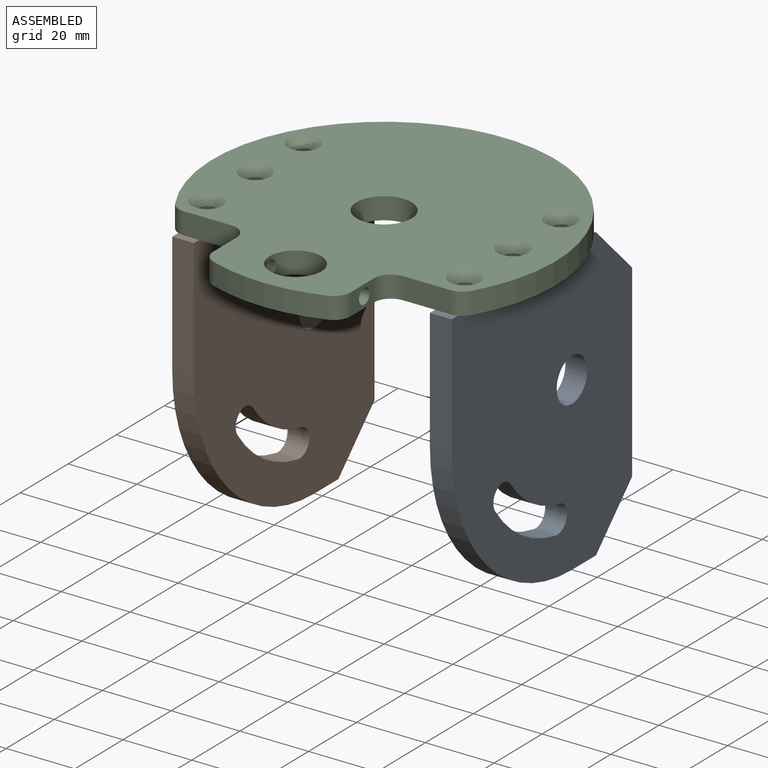
[diagram: assembled view]
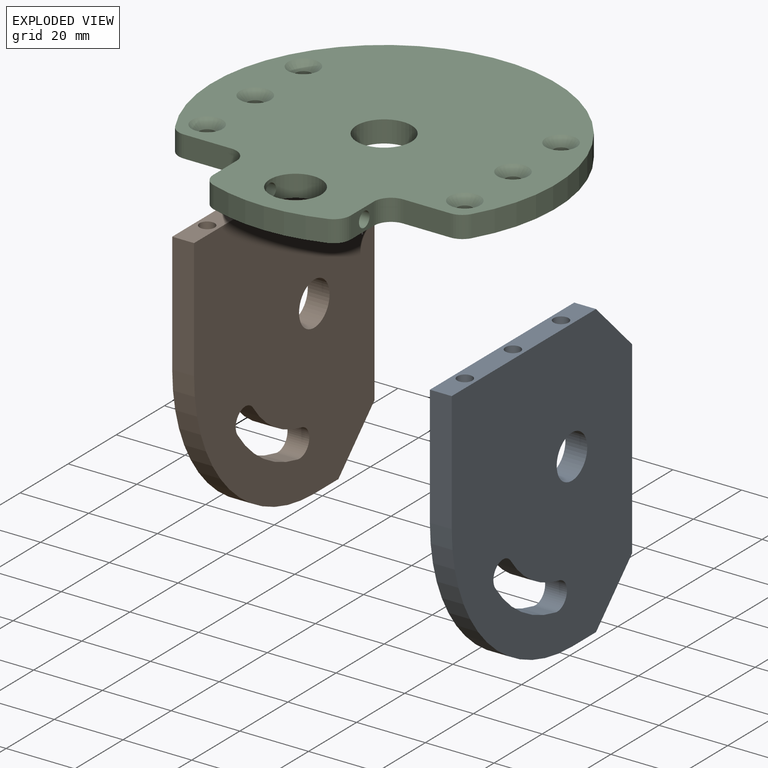
[diagram: exploded view]
GUIDED TOUR — MATED ASSEMBLY (Onshape document 7c3d1aeb51c2d743b5142ca0, AutoMate assembly 7c3d1aeb51c2d743b5142ca0_7ad1a2234b4075b2d494fefe_948addc8903bf7b92234667a_default)

This assembly has 3 components, labeled P0..P2 below (a component is one placed occurrence of a part; the same part can appear more than once), held together by 2 mates. A mate is a constraint between two components; its type names the relative motion it leaves free:
  FASTENED — locks the two components together rigidly (no relative motion).
Axis/direction vectors are unit vectors and 'through' points are millimeter coordinates, both in the assembly's world frame.

MATES
  1. FASTENED "Fastened 1": P1 <-> P2, direction (0.000, 0.000, 1.000) through (-37.50, -20.00, 0.00) mm
  2. FASTENED "Fastened 2": P0 <-> P2, direction (0.000, 0.000, 1.000) through (37.50, -20.00, 0.00) mm

ASSEMBLY ORDER
  1. P1 — the base component [order verified]
  2. P0 [order verified]
  3. P2 [order verified]
Order-tag legend:
  [order verified] — this step's position reverses a verified removal order: the component was checked to insert without passing through the ones already placed.

Of the 3 components, 2 carry the full construction recipe — the FeatureScript program that regenerates the part's solid from scratch; the rest are supplied as boundary geometry only.
Each toured component is shown spotlighted twice — in the assembled view, then in the exploded view, where a leader line traces a displaced component back to its assembled socket (saturated green if recipe-attached, orange if geometry-only; every other component desaturated gray) — followed by its recipe or geometry summary and the mates that hold it.
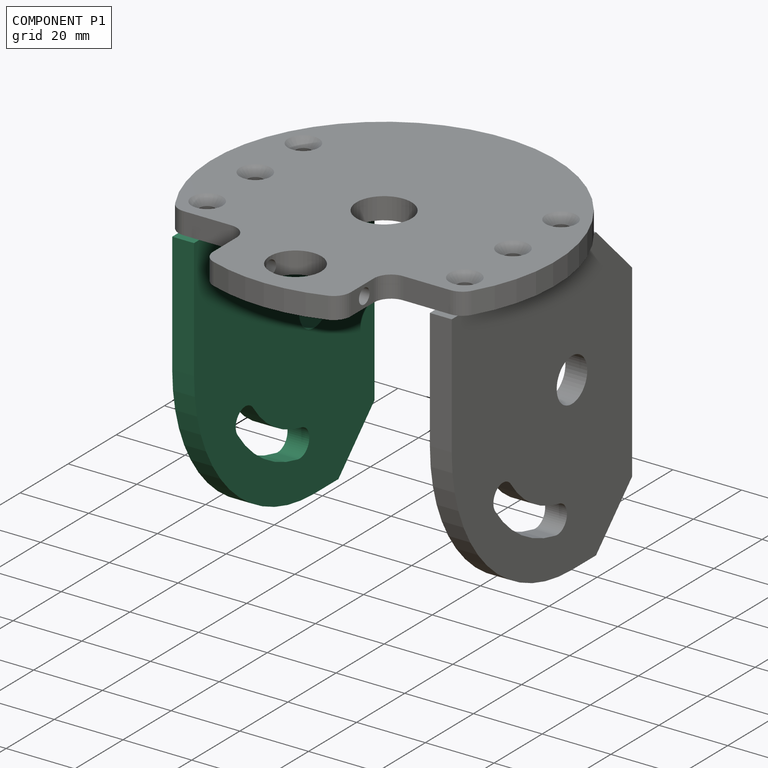
[diagram: component P1 — assembled]
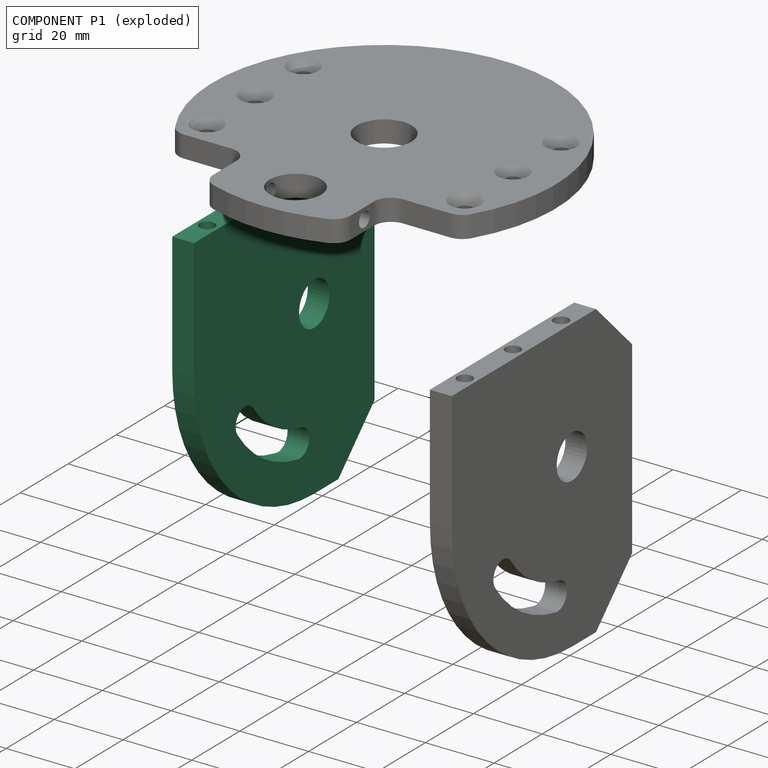
[diagram: component P1 — exploded]
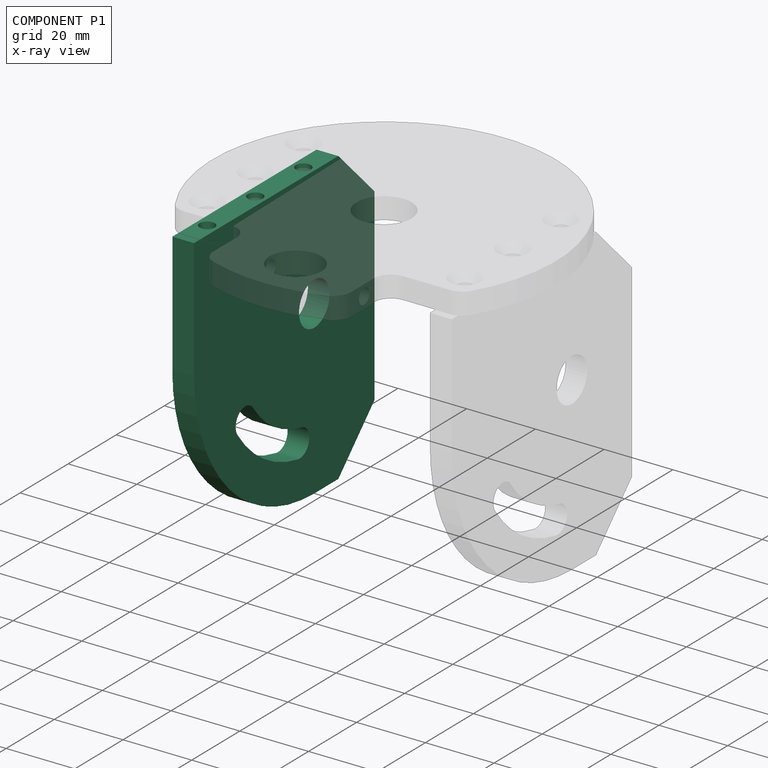
[diagram: component P1 — x-ray view]
COMPONENT P1 — same part as P0 (CADFS 00680055); its construction recipe is shown at P0.
Held by: FASTENED mate "Fastened 1" to P2.
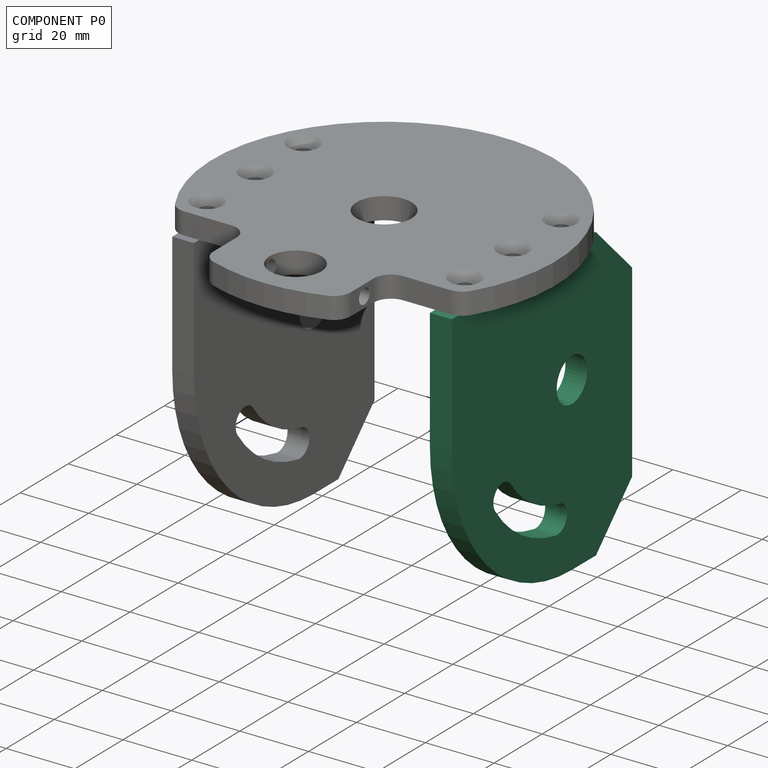
[diagram: component P0 — assembled]
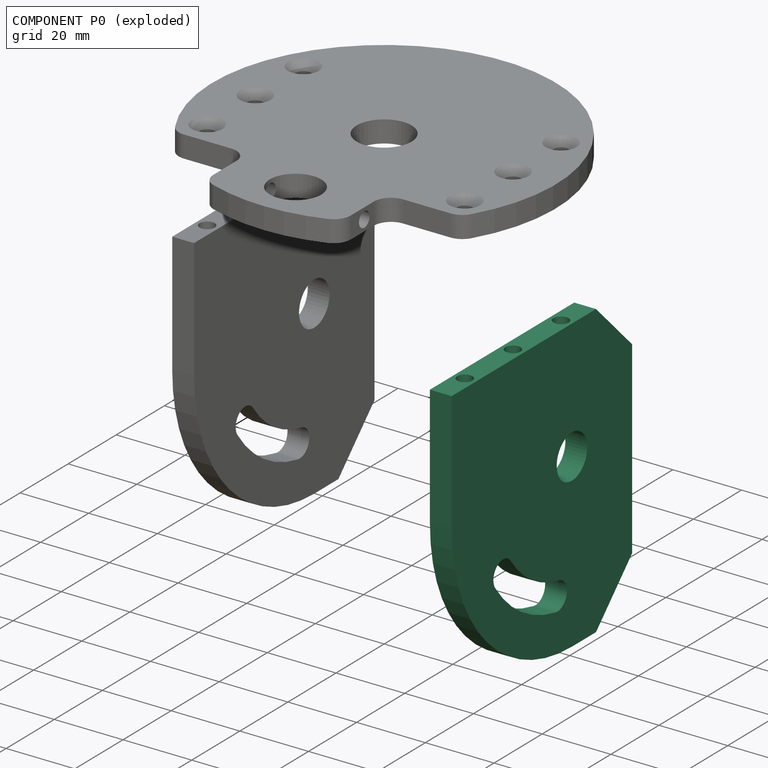
[diagram: component P0 — exploded]
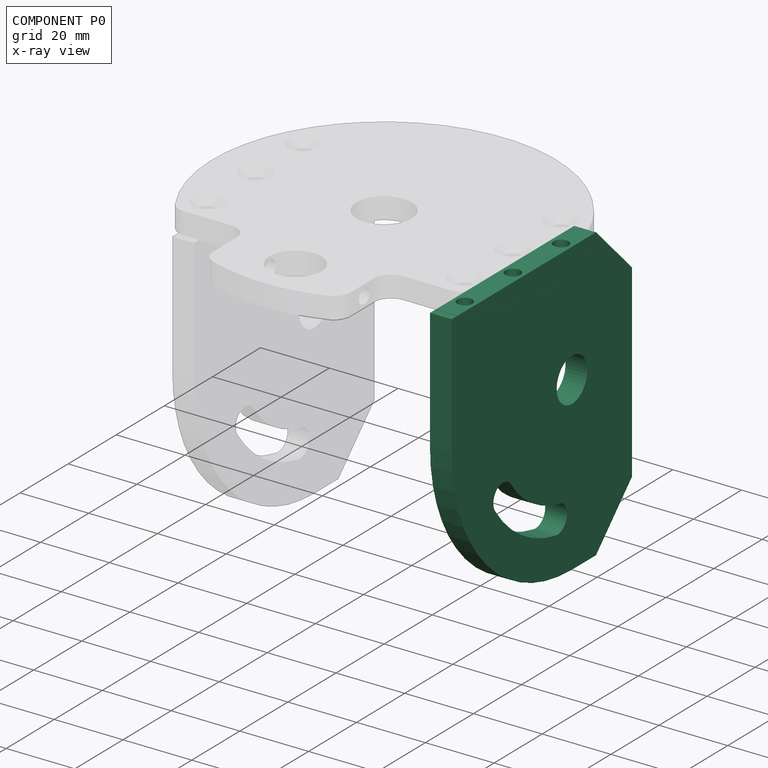
[diagram: component P0 — x-ray view]
COMPONENT P0 — recipe-attached (CADFS 00680055, mesh-verified: the recipe's output STEP matches this component's geometry to below the mesh-comparison resolution (tessellation chordal tolerance ~0.17 mm)).
Held by: FASTENED mate "Fastened 2" to P2.
Construction recipe (FeatureScript — the CAD program that rebuilds this solid; sketch coordinates are in the units given by the * unit suffixes, e.g. mm):

FeatureScript 1511;
import(path : "onshape/std/geometry.fs", version : "1511.0");
import(path : "onshape/std/common.fs", version : "1511.0");
const mm = millimeter;
const VERTEX = EntityType.VERTEX;
const EDGE = EntityType.EDGE;
const FACE = EntityType.FACE;
const BODY = EntityType.BODY;
function v(x, y){return vector(x, y);}
function OD(order){return orderDisambiguation(order);}
function OSD(set){return originalSetDisambiguation(set);}
function TD(topology){return topologyDisambiguation(topology);}
function TDD(query){return trueDependencyDisambiguation(query);}
function sQuery(a, b, c) {return sketchEntityQuery(a, b, c);}

annotation { "Feature Type Name" : "Feature", "Feature Type Description" : "" }
export const myFeature = defineFeature(function(context is Context, id is Id, definition is map)
    precondition{}
    {
        {
            var Q0;
            Q0=qCreatedBy(makeId("Right.planeOp"),FACE);
            var sketch = newSketch(context, id + "F0", { "sketchPlane" : qUnion([Q0])});
            skLineSegment(sketch, "E0", {"start": v(0, 0) * mm, "end": v(-75, 0) * mm});
            skLineSegment(sketch, "E1", {"start": v(-75, 0) * mm, "end": v(-75, 35) * mm});
            skArc(sketch, "E2", {"start": v(-25, 85) * mm, "mid": v(-60.36, 70.36) * mm, "end": v(-75, 35) * mm});
            skLineSegment(sketch, "E3", {"start": v(-25, 85) * mm, "end": v(0, 85) * mm});
            skLineSegment(sketch, "E4", {"start": v(0, 85) * mm, "end": v(0, 0) * mm});
            skArc(sketch, "E5", {"start": v(-56.95, 57.37) * mm, "mid": v(-45.95, 67.9) * mm, "end": v(-31.77, 73.4) * mm});
            skArc(sketch, "E6.0", {"start": v(-53.67, 55.08) * mm, "mid": v(-43.8, 64.52) * mm, "end": v(-31.08, 69.47) * mm, "construction": true});
            skArc(sketch, "E7.0", {"start": v(-50.4, 52.78) * mm, "mid": v(-41.66, 61.15) * mm, "end": v(-30.38, 65.53) * mm});
            skArc(sketch, "E8", {"start": v(-31.77, 73.4) * mm, "mid": v(-27.14, 70.16) * mm, "end": v(-30.38, 65.53) * mm});
            skArc(sketch, "E9", {"start": v(-56.95, 57.37) * mm, "mid": v(-55.96, 51.8) * mm, "end": v(-50.4, 52.78) * mm});
            skCircle(sketch, "E10", {"center": v(-25, 35) * mm, "radius": 6.35 * mm});
            skLineSegment(sketch, "E11", {"start": v(-31.08, 69.47) * mm, "end": v(-25, 35) * mm, "construction": true});
            skLineSegment(sketch, "E12", {"start": v(-53.67, 55.08) * mm, "end": v(-25, 35) * mm, "construction": true});
            skSolve(sketch);
        }
        {
            var Q0;
            Q0 = qSketchRegion(id + "F0", true);
            extrude(context, id + "F1", {"entities" : qUnion([Q0]), "depth" : 6.35 * mm, "offsetDistance" : 25 * mm});
        }
        {
            var Q0;
            Q0=makeQuery(id+"F1.opExtrude","SWEPT_EDGE",EDGE,{"disambiguationData":[OSD([sQuery(id+"F0.wireOp",EDGE,"E3"),sQuery(id+"F0.wireOp",EDGE,"E4")])]});
            var Q1;
            Q1=makeQuery(id+"F1.opExtrude","SWEPT_EDGE",EDGE,{"disambiguationData":[OSD([sQuery(id+"F0.wireOp",EDGE,"E0"),sQuery(id+"F0.wireOp",EDGE,"E4")])]});
            chamfer(context, id + "F2", {"entities" : qUnion([Q0, Q1]), "width" : 15 * mm, "tangentPropagation" : true});
        }
        {
            var Q0;
            Q0=makeQuery(id+"F1.opExtrude","SWEPT_FACE",FACE,{"disambiguationData":[OSD([sQuery(id+"F0.wireOp",EDGE,"E0")])]});
            var sketch = newSketch(context, id + "F3", { "sketchPlane" : qUnion([Q0])});
            skPoint(sketch, "E13", {"position": v(3.18, 65) * mm});
            skPoint(sketch, "E14", {"position": v(3.18, 45) * mm});
            skPoint(sketch, "E15", {"position": v(3.18, 25) * mm});
            skLineSegment(sketch, "E16", {"start": v(3.18, 65) * mm, "end": v(3.18, 45) * mm, "construction": true});
            skLineSegment(sketch, "E17", {"start": v(3.18, 25) * mm, "end": v(3.18, 45) * mm, "construction": true});
            skLineSegment(sketch, "E18", {"start": v(3.18, 65) * mm, "end": v(3.18, 75) * mm, "construction": true});
            skSolve(sketch);
        }
        {
            var Q0;
            Q0=sQuery(id+"F3.wireOp",VERTEX,"E13");
            var Q1;
            Q1=sQuery(id+"F3.wireOp",VERTEX,"E14");
            var Q2;
            Q2=sQuery(id+"F3.wireOp",VERTEX,"E15");
            var Q3;
            Q3=makeQuery(id+"F1.opExtrude","SWEPT_BODY",BODY,{"disambiguationData":[OSD([sQuery(id+"F0.wireOp",EDGE,"E0"),sQuery(id+"F0.wireOp",EDGE,"E1"),sQuery(id+"F0.wireOp",EDGE,"E2"),sQuery(id+"F0.wireOp",EDGE,"E3"),sQuery(id+"F0.wireOp",EDGE,"E4"),sQuery(id+"F0.wireOp",EDGE,"E5"),sQuery(id+"F0.wireOp",EDGE,"E7.0"),sQuery(id+"F0.wireOp",EDGE,"E8"),sQuery(id+"F0.wireOp",EDGE,"E9"),sQuery(id+"F0.wireOp",EDGE,"E10")])]});
            hole(context, id + "F4", {"style" : HoleStyle.SIMPLE, "endStyle" : HoleEndStyle.BLIND, "standardTappedOrClearance" : lookupTablePath({ "standard" : "ISO", "fit" : "Normal", "size" : "M4", "type" : "Clearance" }), "standardBlindInLast" : lookupTablePath({ "fit" : "Standard", "standard" : "ISO", "size" : "M4", "type" : "Clearance" }), "holeDiameter" : 4.4 * mm, "majorDiameter" : 5 * mm, "holeDepth" : 15 * mm, "isTappedThrough" : true, "tappedDepth" : 12 * mm, "tapClearance" : 3, "locations" : qUnion([Q0, Q1, Q2]), "scope" : qUnion([Q3])});
        }
    });
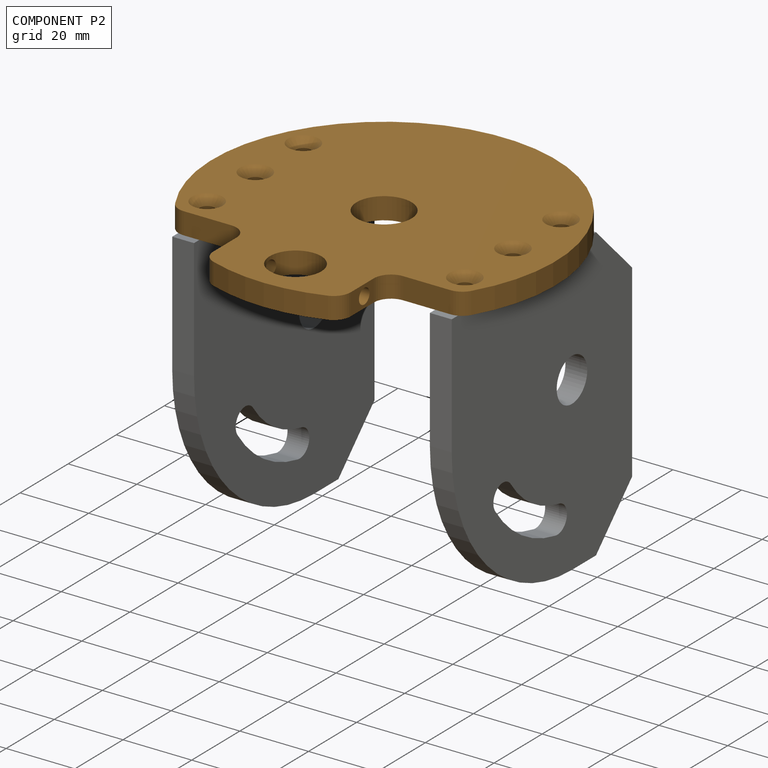
[diagram: component P2 — assembled]
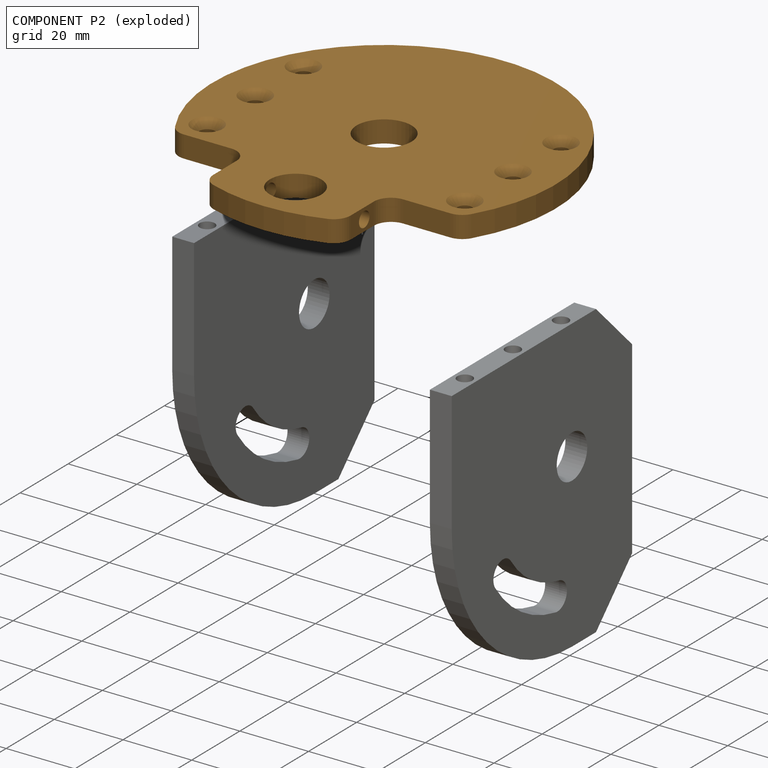
[diagram: component P2 — exploded]
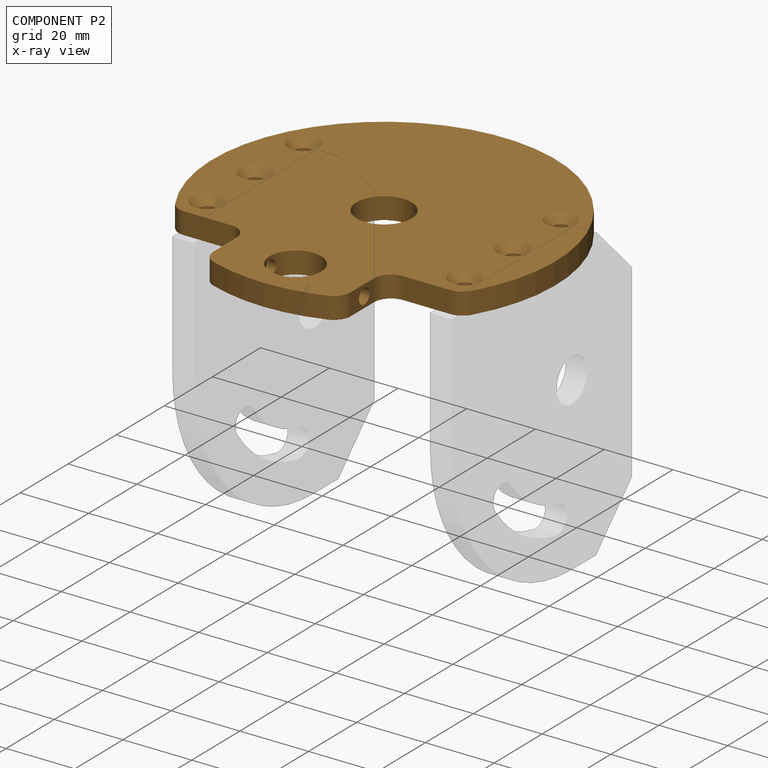
[diagram: component P2 — x-ray view]
COMPONENT P2 — geometry summary (no construction recipe available for this part):
  bounding box: 100.0 x 100.0 x 6.4 mm
  B-rep topology: 1 solid, 30 faces, 164 edges
  volume: 43305 mm^3 (68% of its bounding box)
  symmetry: mirror-symmetric across its x mid-plane
Held by: FASTENED mate "Fastened 1" to P1; FASTENED mate "Fastened 2" to P0.
PROVENANCE & LICENSES
Assembly (occurrences, transforms, mates, per-part STEP geometry): AutoMate dataset, Zenodo record 7776208, CC0.
Construction recipes: CADFS (HuggingFace VladPyatov/CADFS, CC-BY-4.0, layered over the ABC dataset), FeatureScript reconstruction programs keyed by ABC model id.
Join: ABC meta listings map ABC model id -> Onshape documentId; within a shared document, parts are matched by geometric signature (bounding-box dims + volume at 0.1% relative tolerance, exact B-rep face/solid counts).
Verification: 2 of this assembly's 3 components carry a recipe attachment, and every attachment is mesh-verified: the CADFS STEP and the AutoMate member STEP were compared as meshes in their shared local frame (symmetric sampled-point-to-mesh distance); worst across the 2 attachments: below the mesh-comparison resolution (tessellation chordal tolerance ~0.17 mm) on a 114 mm part.
Renders: orthographic iso camera (az 35 / el 25); the floor grid conveys scale (grid pitch printed in each image; no ruler). In the exploded view each component is displaced by its stored offset vector: the offsets alone carry the explosion direction (mate normal/axis signs are not orientation cues and do not encode it), and separation distances are assigned per mate-chain, not proportionally to assembly-order depth.
